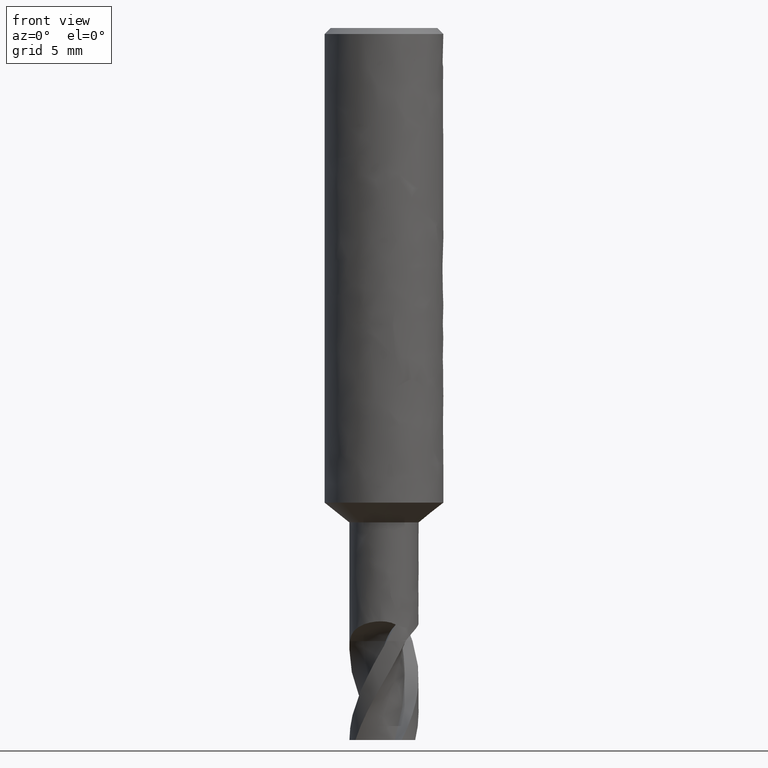
[diagram: clean part render]
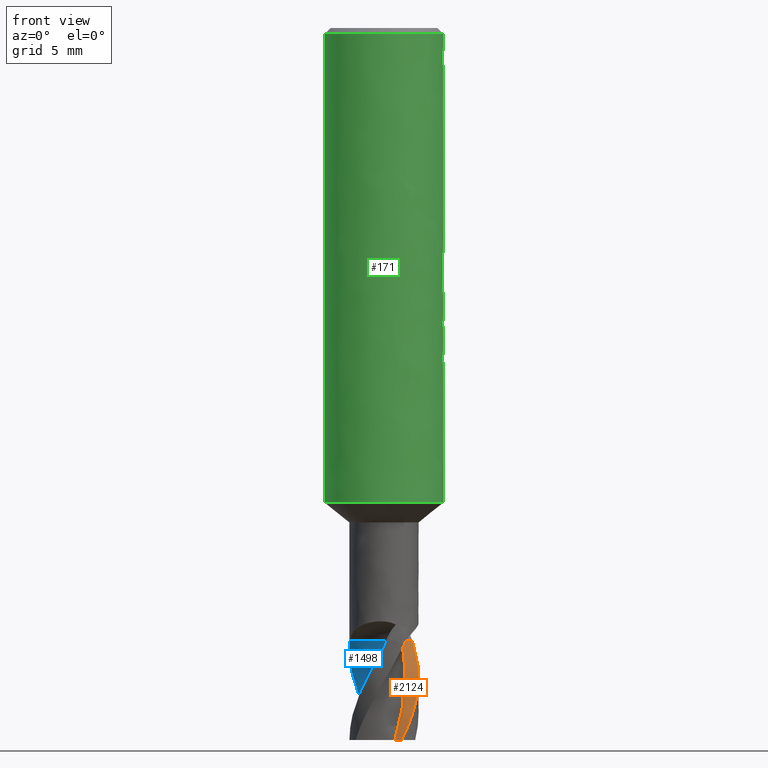
[diagram: same view with three faces highlighted in distinct colors, each labeled with its STEP entity id]
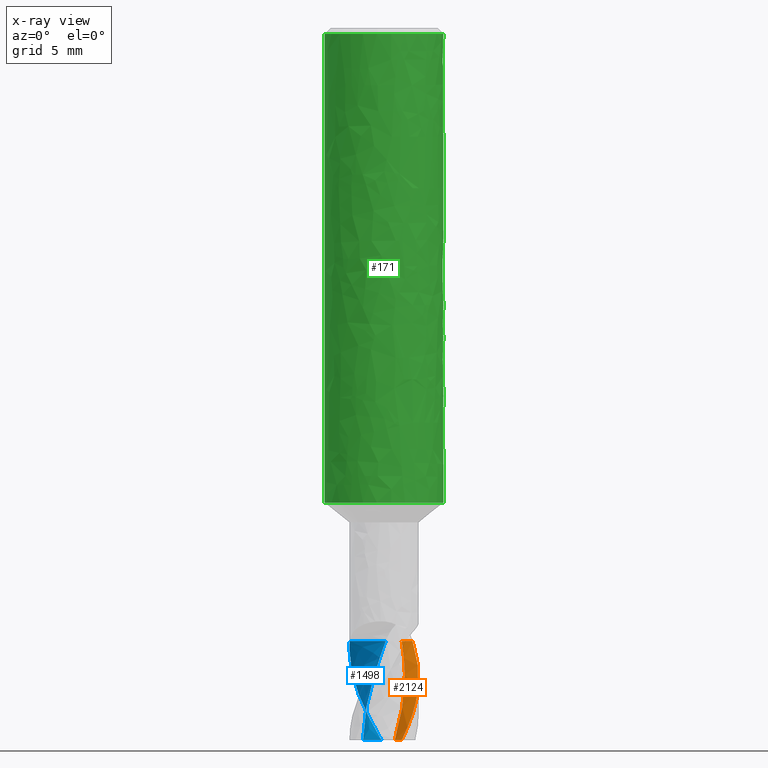
[diagram: x-ray of the same camera — body ghosted, the three highlighted faces saturated]
A machine part, front view with three faces highlighted in distinct colors.
The next image is the same camera in x-ray (body ghosted, the three faces saturated) — at least one of them is partly hidden behind the body in this view.
Their STEP definitions:

[orange] entity #2124 — the highlighted face is a freeform B-spline surface patch.
#1152 = VERTEX_POINT('', #1153);
#1153 = CARTESIAN_POINT('', (0.890026275204839, 0.612047449909204, -31.));
#1159 = EDGE_CURVE('', #1152, #1160, #1162, .T.);
#1160 = VERTEX_POINT('', #1161);
#1161 = CARTESIAN_POINT('', (1.44195658829242, 0.991595279073117, -31.));
#1162 = LINE('', #1163, #1164);
#1163 = CARTESIAN_POINT('', (0.890026275204839, 0.612047449909206, -31.));
#1164 = VECTOR('', #1165, 0.66983850675218);
#1165 = DIRECTION('', (0.551930313087578, 0.379547829163912, 0.));
#2008 = EDGE_CURVE('', #1160, #2009, #2011, .T.);
#2009 = VERTEX_POINT('', #2010);
#2010 = CARTESIAN_POINT('', (0.899635366429751, -1.50105170046498, -36.));
#2011 = B_SPLINE_CURVE_WITH_KNOTS('', 3, (#2012, #2013, #2014, #2015, #2016, #2017, #2018, #2019, #2020, #2021, #2022, #2023, #2024, #2025, #2026, #2027, #2028, #2029, #2030, #2031, #2032, #2033, #2034, #2035, #2036, #2037, #2038, #2039, #2040, #2041, #2042, #2043, #2044, #2045, #2046, #2047, #2048, #2049, #2050, #2051, #2052, #2053, #2054, #2055, #2056, #2057, #2058, #2059, #2060, #2061, #2062, #2063, #2064, #2065, #2066, #2067, #2068, #2069, #2070, #2071, #2072, #2073, #2074, #2075, #2076, #2077, #2078, #2079, #2080, #2081, #2082, #2083, #2084, #2085, #2086, #2087, #2088, #2089, #2090, #2091, #2092, #2093, #2094, #2095, #2096), .UNSPECIFIED., .F., .U., (4, 3, 3, 3, 3, 3, 3, 3, 3, 3, 3, 3, 3, 3, 3, 3, 3, 3, 3, 3, 3, 3, 3, 3, 3, 3, 3, 3, 4), (0.957480981001484, 0.963514640089023, 1.05112780125939, 1.13867924036639, 1.2262078190571, 1.31375394906046, 1.37214585069456, 1.50354472421743, 1.63486543078733, 1.72240571211267, 1.80994215847095, 1.94123628688361, 2.07254201571778, 2.16008676754211, 2.35693703943189, 2.48820820408763, 2.61948141918767, 2.9145261808132, 3.04577349566216, 3.08468653206551, 3.38086465970112, 3.67697074810741, 4.12131437525701, 4.56542010870828, 5.00929511716615, 5.45294702568853, 5.89638099274759, 6.33960030654437, 6.71621092576527), .UNSPECIFIED.);
#2012 = CARTESIAN_POINT('', (1.44195658829242, 0.991595279073117, -31.));
#2013 = CARTESIAN_POINT('', (1.44252676725661, 0.990766137051899, -31.0017413856903));
#2014 = CARTESIAN_POINT('', (1.44309631699926, 0.989936378274433, -31.0034826930488));
#2015 = CARTESIAN_POINT('', (1.44366522954594, 0.989106013023913, -31.0052239100743));
#2016 = CARTESIAN_POINT('', (1.45192625754256, 0.977048499752351, -31.0305076600634));
#2017 = CARTESIAN_POINT('', (1.4600529350013, 0.964862126108231, -31.0557745117883));
#2018 = CARTESIAN_POINT('', (1.46800663360745, 0.952605124741903, -31.0810608879493));
#2019 = CARTESIAN_POINT('', (1.4759547289608, 0.940356758235967, -31.1063294502647));
#2020 = CARTESIAN_POINT('', (1.48373046626853, 0.928037871730065, -31.1316187805019));
#2021 = CARTESIAN_POINT('', (1.49131999335129, 0.915677168783142, -31.156942821345));
#2022 = CARTESIAN_POINT('', (1.49890753874477, 0.903319693319603, -31.1822602498681));
#2023 = CARTESIAN_POINT('', (1.50630952069164, 0.890920186502531, -31.2076134528713));
#2024 = CARTESIAN_POINT('', (1.51353444577983, 0.87847224283863, -31.2329925660939));
#2025 = CARTESIAN_POINT('', (1.52076081961678, 0.866021803101397, -31.2583767683601));
#2026 = CARTESIAN_POINT('', (1.52781070299894, 0.853522488286514, -31.2837878316343));
#2027 = CARTESIAN_POINT('', (1.53471067540554, 0.840929927399591, -31.30919274148));
#2028 = CARTESIAN_POINT('', (1.5393128492541, 0.832530885927369, -31.3261374196363));
#2029 = CARTESIAN_POINT('', (1.54384992460681, 0.824087240366653, -31.3430778762613));
#2030 = CARTESIAN_POINT('', (1.54832906588599, 0.815583903551689, -31.360003495187));
#2031 = CARTESIAN_POINT('', (1.55840844508008, 0.796448906276328, -31.3980910929236));
#2032 = CARTESIAN_POINT('', (1.5681808788411, 0.777034204200262, -31.4361215385168));
#2033 = CARTESIAN_POINT('', (1.57759810919683, 0.757419438527031, -31.4741344816681));
#2034 = CARTESIAN_POINT('', (1.58700973740252, 0.737816341343983, -31.5121248115666));
#2035 = CARTESIAN_POINT('', (1.59606776806098, 0.718011852802983, -31.5501009818138));
#2036 = CARTESIAN_POINT('', (1.60474622606568, 0.698061279493407, -31.588084982679));
#2037 = CARTESIAN_POINT('', (1.61053141162434, 0.684761938926789, -31.613405666739));
#2038 = CARTESIAN_POINT('', (1.61614865189445, 0.671396552052521, -31.6387306745357));
#2039 = CARTESIAN_POINT('', (1.62159454434329, 0.657975025176552, -31.6640621321423));
#2040 = CARTESIAN_POINT('', (1.62704019821833, 0.644554086271201, -31.6893924800278));
#2041 = CARTESIAN_POINT('', (1.63231435532689, 0.631077781809103, -31.7147309969226));
#2042 = CARTESIAN_POINT('', (1.63741980698134, 0.617540586281729, -31.7400703333757));
#2043 = CARTESIAN_POINT('', (1.64507736966536, 0.597236423137572, -31.7780762866966));
#2044 = CARTESIAN_POINT('', (1.6523569273101, 0.576791255639695, -31.8160852240771));
#2045 = CARTESIAN_POINT('', (1.65925878970519, 0.556201643997983, -31.854082355324));
#2046 = CARTESIAN_POINT('', (1.6661612619106, 0.535610213172302, -31.8920828437868));
#2047 = CARTESIAN_POINT('', (1.6726862183536, 0.514872438816998, -31.9300747667278));
#2048 = CARTESIAN_POINT('', (1.67882447131224, 0.494012544904669, -31.968059960501));
#2049 = CARTESIAN_POINT('', (1.68291699520035, 0.480104741704832, -31.9933856213949));
#2050 = CARTESIAN_POINT('', (1.68683743259161, 0.466143321780081, -32.0187102871092));
#2051 = CARTESIAN_POINT('', (1.69058258055415, 0.452139954358017, -32.0440370399392));
#2052 = CARTESIAN_POINT('', (1.69900379803813, 0.420652439378967, -32.1009859498028));
#2053 = CARTESIAN_POINT('', (1.70654042701513, 0.388946616811017, -32.1579522071264));
#2054 = CARTESIAN_POINT('', (1.71318270449298, 0.35707845220082, -32.2149246484679));
#2055 = CARTESIAN_POINT('', (1.71761215989638, 0.335826913944559, -32.2529171727167));
#2056 = CARTESIAN_POINT('', (1.72164473983127, 0.314500152864474, -32.2909160345257));
#2057 = CARTESIAN_POINT('', (1.725279500076, 0.29310518012736, -32.3289123963485));
#2058 = CARTESIAN_POINT('', (1.72891431709538, 0.271709873202611, -32.3669093516713));
#2059 = CARTESIAN_POINT('', (1.73215194477331, 0.250241954208062, -32.4049055644008));
#2060 = CARTESIAN_POINT('', (1.73498955152308, 0.228716540953542, -32.4428969349884));
#2061 = CARTESIAN_POINT('', (1.74136725017571, 0.18033682832343, -32.5282849166136));
#2062 = CARTESIAN_POINT('', (1.74572372781725, 0.131650415396204, -32.6136744935367));
#2063 = CARTESIAN_POINT('', (1.74803594301206, 0.0828875258288146, -32.6990513832799));
#2064 = CARTESIAN_POINT('', (1.74906450570879, 0.0611959076325256, -32.737030324059));
#2065 = CARTESIAN_POINT('', (1.74968917675548, 0.0394865897273002, -32.7750122430195));
#2066 = CARTESIAN_POINT('', (1.74990971770295, 0.0177758231531598, -32.8129935299955));
#2067 = CARTESIAN_POINT('', (1.74997510508194, 0.0113388773686593, -32.824254462872));
#2068 = CARTESIAN_POINT('', (1.75000497382732, 0.00490169545409686, -32.83551552302));
#2069 = CARTESIAN_POINT('', (1.749999326523, -0.00153530748022943, -32.8467766116496));
#2070 = CARTESIAN_POINT('', (1.74995634329233, -0.0505291576879681, -32.9324879427027));
#2071 = CARTESIAN_POINT('', (1.74785443561536, -0.0995251405195938, -33.0182216865673));
#2072 = CARTESIAN_POINT('', (1.74370138068193, -0.148342492253743, -33.1039331197663));
#2073 = CARTESIAN_POINT('', (1.73954933589357, -0.19714797017255, -33.1896237054245));
#2074 = CARTESIAN_POINT('', (1.73334504562952, -0.245793467736491, -33.2753306211167));
#2075 = CARTESIAN_POINT('', (1.72511338267358, -0.29408131004977, -33.3610196789419));
#2076 = CARTESIAN_POINT('', (1.71276075934521, -0.36654316017988, -33.4896066558797));
#2077 = CARTESIAN_POINT('', (1.69582842980556, -0.438256674615753, -33.6182585600473));
#2078 = CARTESIAN_POINT('', (1.67446625684722, -0.508588984033774, -33.7468468234457));
#2079 = CARTESIAN_POINT('', (1.65311552081746, -0.578883638780553, -33.8753662429681));
#2080 = CARTESIAN_POINT('', (1.62731893362296, -0.647865989518041, -34.0039478907831));
#2081 = CARTESIAN_POINT('', (1.59730611060122, -0.714921806239043, -34.1324670780958));
#2082 = CARTESIAN_POINT('', (1.56730888005639, -0.781942785641575, -34.2609194961992));
#2083 = CARTESIAN_POINT('', (1.53307080477989, -0.847104215257593, -34.3894346993938));
#2084 = CARTESIAN_POINT('', (1.49489555106744, -0.909828165863633, -34.5178871235103));
#2085 = CARTESIAN_POINT('', (1.45673948495618, -0.972520590231279, -34.6462749850203));
#2086 = CARTESIAN_POINT('', (1.41461354651143, -1.03283819404429, -34.7747254444242));
#2087 = CARTESIAN_POINT('', (1.36889118576782, -1.09024626645872, -34.9031133230849));
#2088 = CARTESIAN_POINT('', (1.32319128587249, -1.14762613748582, -35.0314381319342));
#2089 = CARTESIAN_POINT('', (1.27385447299074, -1.20215460901493, -35.159825389865));
#2090 = CARTESIAN_POINT('', (1.22131784500399, -1.25334860333221, -35.2881502303339));
#2091 = CARTESIAN_POINT('', (1.16880664844429, -1.30451781615166, -35.4164129525447));
#2092 = CARTESIAN_POINT('', (1.11304787213232, -1.35240531081379, -35.5447378552291));
#2093 = CARTESIAN_POINT('', (1.05453559411031, -1.39658679671347, -35.6730006699416));
#2094 = CARTESIAN_POINT('', (1.0048167651425, -1.43412851983976, -35.7819876580268));
#2095 = CARTESIAN_POINT('', (0.953074011105411, -1.46902395973532, -35.8910135715784));
#2096 = CARTESIAN_POINT('', (0.899635366429752, -1.50105170046498, -36.));
#2124 = ADVANCED_FACE('', (#2125), #2158, .T.);
#2125 = FACE_OUTER_BOUND('', #2126, .T.);
#2126 = EDGE_LOOP('', (#2127, #2128, #2151, #2157));
#2127 = ORIENTED_EDGE('', *, *, #1159, .F.);
#2128 = ORIENTED_EDGE('', *, *, #2129, .F.);
#2129 = EDGE_CURVE('', #2130, #1152, #2132, .T.);
#2130 = VERTEX_POINT('', #2131);
#2131 = CARTESIAN_POINT('', (0.544940590071605, -0.909239487355396, -36.));
#2132 = B_SPLINE_CURVE_WITH_KNOTS('', 3, (#2133, #2134, #2135, #2136, #2137, #2138, #2139, #2140, #2141, #2142, #2143, #2144, #2145, #2146, #2147, #2148, #2149, #2150), .UNSPECIFIED., .F., .U., (4, 1, 1, 1, 1, 1, 1, 1, 1, 1, 1, 1, 1, 1, 1, 4), (0.0499999999999987, 0.672222222222222, 1.00833333333333, 1.34444444444444, 1.68055555555556, 2.01666666666667, 2.35277777777778, 2.68888888888889, 3.025, 3.36111111111111, 3.69722222222222, 4.03333333333333, 4.36944444444444, 4.70555555555555, 5.04166666666667, 5.05), .UNSPECIFIED.);
#2133 = CARTESIAN_POINT('', (0.544940590071606, -0.909239487355396, -36.));
#2134 = CARTESIAN_POINT('', (0.605563211542006, -0.870686619623749, -35.7925925925926));
#2135 = CARTESIAN_POINT('', (0.692834054224696, -0.802317325295902, -35.4731481481481));
#2136 = CARTESIAN_POINT('', (0.794933710943784, -0.694080938953839, -35.0416666666667));
#2137 = CARTESIAN_POINT('', (0.865040741189985, -0.602018946536168, -34.7055555555556));
#2138 = CARTESIAN_POINT('', (0.925006362385828, -0.503203935060161, -34.3694444444444));
#2139 = CARTESIAN_POINT('', (0.974214248807352, -0.398695321785037, -34.0333333333333));
#2140 = CARTESIAN_POINT('', (1.01215396649719, -0.28960342888543, -33.6972222222222));
#2141 = CARTESIAN_POINT('', (1.03841221324569, -0.17708625172186, -33.3611111111111));
#2142 = CARTESIAN_POINT('', (1.05272586097909, -0.0623197163890223, -33.025));
#2143 = CARTESIAN_POINT('', (1.05479878751788, 0.0534368228904306, -32.6888888888889));
#2144 = CARTESIAN_POINT('', (1.04499757171392, 0.169130957763196, -32.3527777777778));
#2145 = CARTESIAN_POINT('', (1.02176368045749, 0.282880597901976, -32.0166666666667));
#2146 = CARTESIAN_POINT('', (0.99127645414979, 0.395890538748353, -31.6805555555556));
#2147 = CARTESIAN_POINT('', (0.931391913981727, 0.49788411220861, -31.3444444444444));
#2148 = CARTESIAN_POINT('', (0.889420815383369, 0.560811912665505, -31.1175925925926));
#2149 = CARTESIAN_POINT('', (0.889999669429893, 0.610826740383209, -31.0027777777778));
#2150 = CARTESIAN_POINT('', (0.890026275204839, 0.612047449909204, -31.));
#2151 = ORIENTED_EDGE('', *, *, #2152, .T.);
#2152 = EDGE_CURVE('', #2130, #2009, #2153, .T.);
#2153 = LINE('', #2154, #2155);
#2154 = CARTESIAN_POINT('', (0.544940590071605, -0.909239487355396, -36.));
#2155 = VECTOR('', #2156, 0.68996382511072);
#2156 = DIRECTION('', (0.354694776358146, -0.591812213109581, 0.));
#2157 = ORIENTED_EDGE('', *, *, #2008, .F.);
#2158 = B_SPLINE_SURFACE_WITH_KNOTS('', 3, 1, ((#2159, #2160), (#2161, #2162), (#2163, #2164), (#2165, #2166), (#2167, #2168), (#2169, #2170), (#2171, #2172), (#2173, #2174), (#2175, #2176), (#2177, #2178), (#2179, #2180), (#2181, #2182), (#2183, #2184), (#2185, #2186), (#2187, #2188), (#2189, #2190), (#2191, #2192), (#2193, #2194)), .UNSPECIFIED., .F., .F., .U., (4, 1, 1, 1, 1, 1, 1, 1, 1, 1, 1, 1, 1, 1, 1, 4), (2, 2), (0.0499999999999994, 0.672222222222222, 1.00833333333333, 1.34444444444444, 1.68055555555556, 2.01666666666667, 2.35277777777778, 2.68888888888889, 3.025, 3.36111111111111, 3.69722222222222, 4.03333333333333, 4.36944444444444, 4.70555555555555, 5.04166666666667, 5.05), (0.201078923955313, 1.), .UNSPECIFIED.);
#2159 = CARTESIAN_POINT('', (0.9077443589053, -1.51458164537231, -36.));
#2160 = CARTESIAN_POINT('', (0.544940590071606, -0.909239487355396, -36.));
#2161 = CARTESIAN_POINT('', (1.00872755535719, -1.45036152883001, -35.7925925925926));
#2162 = CARTESIAN_POINT('', (0.605563211542006, -0.870686619623749, -35.7925925925926));
#2163 = CARTESIAN_POINT('', (1.15410049432603, -1.33647417600815, -35.4731481481482));
#2164 = CARTESIAN_POINT('', (0.692834054224696, -0.802317325295902, -35.4731481481481));
#2165 = CARTESIAN_POINT('', (1.32417479071995, -1.1561775144631, -35.0416666666667));
#2166 = CARTESIAN_POINT('', (0.794933710943784, -0.694080938953839, -35.0416666666667));
#2167 = CARTESIAN_POINT('', (1.44095680766831, -1.00282363367447, -34.7055555555556));
#2168 = CARTESIAN_POINT('', (0.865040741189985, -0.602018946536168, -34.7055555555556));
#2169 = CARTESIAN_POINT('', (1.54084559437372, -0.83822079278365, -34.3694444444444));
#2170 = CARTESIAN_POINT('', (0.925006362385828, -0.503203935060161, -34.3694444444444));
#2171 = CARTESIAN_POINT('', (1.62281449543671, -0.664133734697108, -34.0333333333333));
#2172 = CARTESIAN_POINT('', (0.974214248807352, -0.398695321785037, -34.0333333333333));
#2173 = CARTESIAN_POINT('', (1.68601324652789, -0.482411998078247, -33.6972222222222));
#2174 = CARTESIAN_POINT('', (1.01215396649719, -0.28960342888543, -33.6972222222222));
#2175 = CARTESIAN_POINT('', (1.72975338223252, -0.294984534037151, -33.3611111111111));
#2176 = CARTESIAN_POINT('', (1.03841221324569, -0.17708625172186, -33.3611111111111));
#2177 = CARTESIAN_POINT('', (1.75359659234032, -0.103810162119288, -33.025));
#2178 = CARTESIAN_POINT('', (1.05272586097909, -0.0623197163890223, -33.025));
#2179 = CARTESIAN_POINT('', (1.7570496061299, 0.0890133262604559, -32.6888888888889));
#2180 = CARTESIAN_POINT('', (1.05479878751788, 0.0534368228904306, -32.6888888888889));
#2181 = CARTESIAN_POINT('', (1.74072305876206, 0.281732863403729, -32.3527777777778));
#2182 = CARTESIAN_POINT('', (1.04499757171392, 0.169130957763196, -32.3527777777778));
#2183 = CARTESIAN_POINT('', (1.70202079633623, 0.471213324291983, -32.0166666666667));
#2184 = CARTESIAN_POINT('', (1.02176368045749, 0.282880597901976, -32.0166666666667));
#2185 = CARTESIAN_POINT('', (1.65123616365572, 0.659461618092306, -31.6805555555556));
#2186 = CARTESIAN_POINT('', (0.99127645414979, 0.395890538748353, -31.6805555555556));
#2187 = CARTESIAN_POINT('', (1.55148243909639, 0.829359204434655, -31.3444444444444));
#2188 = CARTESIAN_POINT('', (0.931391913981727, 0.49788411220861, -31.3444444444444));
#2189 = CARTESIAN_POINT('', (1.48156834445222, 0.934182293270007, -31.1175925925926));
#2190 = CARTESIAN_POINT('', (0.889420815383369, 0.560811912665505, -31.1175925925926));
#2191 = CARTESIAN_POINT('', (1.48253258074685, 1.01749537096973, -31.0027777777778));
#2192 = CARTESIAN_POINT('', (0.889999669429893, 0.610826740383209, -31.0027777777778));
#2193 = CARTESIAN_POINT('', (1.48257689978375, 1.01952878930243, -31.));
#2194 = CARTESIAN_POINT('', (0.890026275204839, 0.612047449909204, -31.));

[blue] entity #1498 — the highlighted face is a freeform B-spline surface patch.
#1133 = VERTEX_POINT('', #1134);
#1134 = CARTESIAN_POINT('', (0.0850355023404332, -1.07680908931763, -31.));
#1202 = VERTEX_POINT('', #1203);
#1203 = CARTESIAN_POINT('', (-1.72979168566461, -0.265180550202315, -31.));
#1210 = EDGE_CURVE('', #1202, #1133, #1211, .T.);
#1211 = LINE('', #1212, #1213);
#1212 = CARTESIAN_POINT('', (-1.72979168566461, -0.265180550202316, -31.));
#1213 = VECTOR('', #1214, 1.98804894502845);
#1214 = DIRECTION('', (1.81482718800504, -0.811628539115315, 0.));
#1432 = EDGE_CURVE('', #1433, #1133, #1435, .T.);
#1433 = VERTEX_POINT('', #1434);
#1434 = CARTESIAN_POINT('', (-1.05989478920952, -0.0173126508775935, -36.));
#1435 = B_SPLINE_CURVE_WITH_KNOTS('', 3, (#1436, #1437, #1438, #1439, #1440, #1441, #1442, #1443, #1444, #1445, #1446, #1447, #1448, #1449, #1450, #1451, #1452, #1453), .UNSPECIFIED., .F., .U., (4, 1, 1, 1, 1, 1, 1, 1, 1, 1, 1, 1, 1, 1, 1, 4), (0.050000000000002, 0.672222222222222, 1.00833333333333, 1.34444444444444, 1.68055555555556, 2.01666666666667, 2.35277777777778, 2.68888888888889, 3.025, 3.36111111111111, 3.69722222222222, 4.03333333333333, 4.36944444444444, 4.70555555555555, 5.04166666666667, 5.05), .UNSPECIFIED.);
#1436 = CARTESIAN_POINT('', (-1.05989478920952, -0.0173126508775925, -36.));
#1437 = CARTESIAN_POINT('', (-1.05681833710037, -0.0890898149807902, -35.7925925925926));
#1438 = CARTESIAN_POINT('', (-1.04124421271498, -0.198853228917598, -35.4731481481481));
#1439 = CARTESIAN_POINT('', (-0.998558580888475, -0.34139231852503, -35.0416666666667));
#1440 = CARTESIAN_POINT('', (-0.953884071854862, -0.44813778391096, -34.7055555555556));
#1441 = CARTESIAN_POINT('', (-0.89829057223931, -0.549477040958278, -34.3694444444444));
#1442 = CARTESIAN_POINT('', (-0.832387401439531, -0.644346627303419, -34.0333333333333));
#1443 = CARTESIAN_POINT('', (-0.75688090968646, -0.731749333085034, -33.6972222222222));
#1444 = CARTESIAN_POINT('', (-0.672567299274945, -0.810748230409862, -33.3611111111111));
#1445 = CARTESIAN_POINT('', (-0.58033338803908, -0.880527480634221, -33.025));
#1446 = CARTESIAN_POINT('', (-0.481121747638301, -0.940200957316724, -32.6888888888889));
#1447 = CARTESIAN_POINT('', (-0.376027079867641, -0.989559922878901, -32.3527777777778));
#1448 = CARTESIAN_POINT('', (-0.265900056207906, -1.02631360289146, -32.0166666666667));
#1449 = CARTESIAN_POINT('', (-0.152786963400915, -1.05641586084125, -31.6805555555556));
#1450 = CARTESIAN_POINT('', (-0.0345156676775466, -1.05555111449189, -31.3444444444444));
#1451 = CARTESIAN_POINT('', (0.0409669554215811, -1.05066697710942, -31.1175925925926));
#1452 = CARTESIAN_POINT('', (0.0839916397677529, -1.07617569327764, -31.0027777777778));
#1453 = CARTESIAN_POINT('', (0.0850355023404332, -1.07680908931763, -31.));
#1498 = ADVANCED_FACE('', (#1499), #1602, .T.);
#1499 = FACE_OUTER_BOUND('', #1500, .T.);
#1500 = EDGE_LOOP('', (#1501, #1502, #1532, #1595, #1601));
#1501 = ORIENTED_EDGE('', *, *, #1210, .F.);
#1502 = ORIENTED_EDGE('', *, *, #1503, .F.);
#1503 = EDGE_CURVE('', #1504, #1202, #1506, .T.);
#1504 = VERTEX_POINT('', #1505);
#1505 = CARTESIAN_POINT('', (-1.75, 2.03132023899144E-15, -31.4239770259593));
#1506 = B_SPLINE_CURVE_WITH_KNOTS('', 3, (#1507, #1508, #1509, #1510, #1511, #1512, #1513, #1514, #1515, #1516, #1517, #1518, #1519, #1520, #1521, #1522, #1523, #1524, #1525, #1526, #1527, #1528, #1529, #1530, #1531), .UNSPECIFIED., .F., .U., (4, 3, 3, 3, 3, 3, 3, 3, 4), (0., 0.0875957689449736, 0.175201051879796, 0.262888556395676, 0.321340477699556, 0.379802090585649, 0.438269246781492, 0.496739733441805, 0.501656907740969), .UNSPECIFIED.);
#1507 = CARTESIAN_POINT('', (-1.75, 1.88386874353342E-15, -31.4239770259593));
#1508 = CARTESIAN_POINT('', (-1.75, -0.0139529094640566, -31.3983279722742));
#1509 = CARTESIAN_POINT('', (-1.74983320774687, -0.0278845103399643, -31.3726667875061));
#1510 = CARTESIAN_POINT('', (-1.749500674923, -0.0418017756078211, -31.3470005297571));
#1511 = CARTESIAN_POINT('', (-1.74916810598193, -0.0557205524637611, -31.3213314843334));
#1512 = CARTESIAN_POINT('', (-1.74867249802065, -0.0696190440979103, -31.2956513483995));
#1513 = CARTESIAN_POINT('', (-1.74799116538224, -0.0838265217316721, -31.2701478935482));
#1514 = CARTESIAN_POINT('', (-1.74730919328187, -0.0980473337356313, -31.2446205025333));
#1515 = CARTESIAN_POINT('', (-1.74644028711271, -0.112584208946517, -31.2192653693865));
#1516 = CARTESIAN_POINT('', (-1.74533655312676, -0.127672692146903, -31.1942560967457));
#1517 = CARTESIAN_POINT('', (-1.74460081121641, -0.137730577104323, -31.1775850779461));
#1518 = CARTESIAN_POINT('', (-1.74376000982394, -0.148034013280921, -31.1610628552125));
#1519 = CARTESIAN_POINT('', (-1.74279630475299, -0.158622319171926, -31.1447354462115));
#1520 = CARTESIAN_POINT('', (-1.74183243989555, -0.169212380649998, -31.1284053300553));
#1521 = CARTESIAN_POINT('', (-1.74074519088669, -0.180090932253949, -31.1122645478128));
#1522 = CARTESIAN_POINT('', (-1.73951557030934, -0.191273575414373, -31.0963526762563));
#1523 = CARTESIAN_POINT('', (-1.73828583313979, -0.202457278909122, -31.0804392959416));
#1524 = CARTESIAN_POINT('', (-1.73691308778944, -0.213949617090657, -31.0647481301958));
#1525 = CARTESIAN_POINT('', (-1.73537853874999, -0.225746156660182, -31.0493108388585));
#1526 = CARTESIAN_POINT('', (-1.73384390229804, -0.237543368195961, -31.0338726681668));
#1527 = CARTESIAN_POINT('', (-1.7321466014968, -0.249650450885244, -31.0186813616126));
#1528 = CARTESIAN_POINT('', (-1.73026917606986, -0.262046901038714, -31.0037592397553));
#1529 = CARTESIAN_POINT('', (-1.73011129080868, -0.263089401444938, -31.0025043387227));
#1530 = CARTESIAN_POINT('', (-1.7299521226471, -0.264134008296475, -31.0012512080036));
#1531 = CARTESIAN_POINT('', (-1.72979168566461, -0.265180550202315, -31.));
#1532 = ORIENTED_EDGE('', *, *, #1533, .F.);
#1533 = EDGE_CURVE('', #1534, #1504, #1536, .T.);
#1534 = VERTEX_POINT('', #1535);
#1535 = CARTESIAN_POINT('', (-0.13579938749371, 1.74472305147732, -36.));
#1536 = B_SPLINE_CURVE_WITH_KNOTS('', 3, (#1537, #1538, #1539, #1540, #1541, #1542, #1543, #1544, #1545, #1546, #1547, #1548, #1549, #1550, #1551, #1552, #1553, #1554, #1555, #1556, #1557, #1558, #1559, #1560, #1561, #1562, #1563, #1564, #1565, #1566, #1567, #1568, #1569, #1570, #1571, #1572, #1573, #1574, #1575, #1576, #1577, #1578, #1579, #1580, #1581, #1582, #1583, #1584, #1585, #1586, #1587, #1588, #1589, #1590, #1591, #1592, #1593, #1594), .UNSPECIFIED., .F., .U., (4, 3, 3, 3, 3, 3, 3, 3, 3, 3, 3, 3, 3, 3, 3, 3, 3, 3, 3, 4), (0., 0.444485917132373, 0.888742850339028, 1.33277559174829, 1.77658916909205, 2.22018659387222, 2.66356901522196, 3.10673755910325, 3.4021459382814, 3.84495677835667, 4.14018737503664, 4.27147412596438, 4.46835553625788, 4.59964403143588, 4.7309075642457, 4.86214859993675, 4.94967602204588, 5.00804364735204, 5.13931018926137, 5.26894643645169), .UNSPECIFIED.);
#1537 = CARTESIAN_POINT('', (-0.135799387493712, 1.74472305147732, -36.));
#1538 = CARTESIAN_POINT('', (-0.208182108121247, 1.73908918934773, -35.870845164973));
#1539 = CARTESIAN_POINT('', (-0.280325774037532, 1.72893425050256, -35.7416739572751));
#1540 = CARTESIAN_POINT('', (-0.351616540846928, 1.71431205099971, -35.6126166525295));
#1541 = CARTESIAN_POINT('', (-0.422870581094194, 1.69969738435341, -35.4836258336884));
#1542 = CARTESIAN_POINT('', (-0.493334391653768, 1.68060634149178, -35.354625351265));
#1543 = CARTESIAN_POINT('', (-0.562381102560269, 1.65717455190565, -35.2257344631937));
#1544 = CARTESIAN_POINT('', (-0.631392969427059, 1.63375458704218, -35.0969086191942));
#1545 = CARTESIAN_POINT('', (-0.699055259304116, 1.60597587599406, -34.9680711737583));
#1546 = CARTESIAN_POINT('', (-0.764763525052212, 1.57405106357765, -34.8393448719805));
#1547 = CARTESIAN_POINT('', (-0.830439358753491, 1.54214200849403, -34.7106821064626));
#1548 = CARTESIAN_POINT('', (-0.8942241778632, 1.50606112831375, -34.5820069558558));
#1549 = CARTESIAN_POINT('', (-0.95554183034097, 1.46609679437228, -34.4534433231029));
#1550 = CARTESIAN_POINT('', (-1.01682961900102, 1.42615192444379, -34.3249423052861));
#1551 = CARTESIAN_POINT('', (-1.07570973295833, 1.38229005204606, -34.1964280981125));
#1552 = CARTESIAN_POINT('', (-1.13164428073795, 1.33487123793761, -34.0680260744305));
#1553 = CARTESIAN_POINT('', (-1.18755171808145, 1.28747540684739, -33.9396862848238));
#1554 = CARTESIAN_POINT('', (-1.24056950166134, 1.23648065638393, -33.8113335976206));
#1555 = CARTESIAN_POINT('', (-1.29020318995757, 1.1823179473489, -33.683091615854));
#1556 = CARTESIAN_POINT('', (-1.33981293610568, 1.12818136515728, -33.5549114950658));
#1557 = CARTESIAN_POINT('', (-1.38609171719219, 1.07082578677026, -33.4267177773291));
#1558 = CARTESIAN_POINT('', (-1.42860492804149, 1.01073634523331, -33.2986399661025));
#1559 = CARTESIAN_POINT('', (-1.45694348880815, 0.970681777337561, -33.2132655433337));
#1560 = CARTESIAN_POINT('', (-1.48362432496311, 0.929393761390241, -33.1278945096896));
#1561 = CARTESIAN_POINT('', (-1.50852813059148, 0.887041644577182, -33.0425579221939));
#1562 = CARTESIAN_POINT('', (-1.54585840240723, 0.823556727605189, -32.9146402033286));
#1563 = CARTESIAN_POINT('', (-1.57922772355106, 0.757627127784379, -32.7866943574195));
#1564 = CARTESIAN_POINT('', (-1.6083479937175, 0.689722212999941, -32.6589142373303));
#1565 = CARTESIAN_POINT('', (-1.62776304402489, 0.6444486860332, -32.5737207468291));
#1566 = CARTESIAN_POINT('', (-1.64528744808434, 0.598292637279147, -32.4885400582087));
#1567 = CARTESIAN_POINT('', (-1.66080768069556, 0.551559468908565, -32.4033361815365));
#1568 = CARTESIAN_POINT('', (-1.66770940746807, 0.530777592284227, -32.36544668004));
#1569 = CARTESIAN_POINT('', (-1.67421487365111, 0.509885483204432, -32.3275432413459));
#1570 = CARTESIAN_POINT('', (-1.6803267069812, 0.488878469361981, -32.2896422464394));
#1571 = CARTESIAN_POINT('', (-1.68949218908052, 0.457375743594677, -32.2328048178644));
#1572 = CARTESIAN_POINT('', (-1.69777993894808, 0.425594286920368, -32.1759725175508));
#1573 = CARTESIAN_POINT('', (-1.70519350202135, 0.393465526652838, -32.1192300913942));
#1574 = CARTESIAN_POINT('', (-1.7101371660186, 0.372040768565364, -32.0813919444013));
#1575 = CARTESIAN_POINT('', (-1.71469216239242, 0.350458284122381, -32.0435898582454));
#1576 = CARTESIAN_POINT('', (-1.71885100610759, 0.328711452193159, -32.0058411528282));
#1577 = CARTESIAN_POINT('', (-1.72300905908638, 0.306968755069694, -31.9680996247123));
#1578 = CARTESIAN_POINT('', (-1.72676638636305, 0.285075718659257, -31.9303982533948));
#1579 = CARTESIAN_POINT('', (-1.73009651686208, 0.263184426480179, -31.8926604900152));
#1580 = CARTESIAN_POINT('', (-1.73342607661354, 0.241296886226631, -31.8549291944712));
#1581 = CARTESIAN_POINT('', (-1.73632924161598, 0.219408903979693, -31.8171578103492));
#1582 = CARTESIAN_POINT('', (-1.73880243124873, 0.197651473770168, -31.779285675294));
#1583 = CARTESIAN_POINT('', (-1.74045185371634, 0.183140983450342, -31.7540279475285));
#1584 = CARTESIAN_POINT('', (-1.74191059463836, 0.16868729412633, -31.7287242187666));
#1585 = CARTESIAN_POINT('', (-1.74318218265357, 0.154323938775353, -31.7033607642966));
#1586 = CARTESIAN_POINT('', (-1.74403014059666, 0.144745741188087, -31.6864471551521));
#1587 = CARTESIAN_POINT('', (-1.74479481712819, 0.135209737175101, -31.6695052147357));
#1588 = CARTESIAN_POINT('', (-1.74547869090737, 0.125714516219514, -31.652537475592));
#1589 = CARTESIAN_POINT('', (-1.74701669670467, 0.104360129897186, -31.6143776835889));
#1590 = CARTESIAN_POINT('', (-1.74814817049194, 0.0831981967207093, -31.5760917435938));
#1591 = CARTESIAN_POINT('', (-1.74889636568206, 0.0621409857026753, -31.5377436136412));
#1592 = CARTESIAN_POINT('', (-1.74963526849157, 0.0413452995135909, -31.4998717570241));
#1593 = CARTESIAN_POINT('', (-1.75, 0.0206494313834184, -31.4619360176294));
#1594 = CARTESIAN_POINT('', (-1.75, 1.88386874353342E-15, -31.4239770259593));
#1595 = ORIENTED_EDGE('', *, *, #1596, .F.);
#1596 = EDGE_CURVE('', #1433, #1534, #1597, .T.);
#1597 = LINE('', #1598, #1599);
#1598 = CARTESIAN_POINT('', (-1.05989478920952, -0.0173126508775935, -36.));
#1599 = VECTOR('', #1600, 1.989653770847);
#1600 = DIRECTION('', (0.924095401715807, 1.76203570235492, 0.));
#1601 = ORIENTED_EDGE('', *, *, #1432, .T.);
#1602 = B_SPLINE_SURFACE_WITH_KNOTS('', 3, 1, ((#1603, #1604), (#1605, #1606), (#1607, #1608), (#1609, #1610), (#1611, #1612), (#1613, #1614), (#1615, #1616), (#1617, #1618), (#1619, #1620), (#1621, #1622), (#1623, #1624), (#1625, #1626), (#1627, #1628), (#1629, #1630), (#1631, #1632), (#1633, #1634), (#1635, #1636), (#1637, #1638)), .UNSPECIFIED., .F., .F., .U., (4, 1, 1, 1, 1, 1, 1, 1, 1, 1, 1, 1, 1, 1, 1, 4), (2, 2), (0.0500000000000043, 0.672222222222222, 1.00833333333333, 1.34444444444444, 1.68055555555556, 2.01666666666667, 2.35277777777778, 2.68888888888889, 3.025, 3.36111111111111, 3.69722222222222, 4.03333333333333, 4.36944444444444, 4.70555555555555, 5.04166666666667, 5.05), (0., 0.907194261383018), .UNSPECIFIED.);
#1603 = CARTESIAN_POINT('', (-1.05989478920952, -0.0173126508775933, -36.));
#1604 = CARTESIAN_POINT('', (-0.127158537565598, 1.76119914912239, -36.));
#1605 = CARTESIAN_POINT('', (-1.05681833710037, -0.0890898149807907, -35.7925925925926));
#1606 = CARTESIAN_POINT('', (-0.246252049338696, 1.74942109361076, -35.7925925925926));
#1607 = CARTESIAN_POINT('', (-1.04124421271498, -0.198853228917599, -35.4731481481481));
#1608 = CARTESIAN_POINT('', (-0.427364036482812, 1.71333169908167, -35.4731481481481));
#1609 = CARTESIAN_POINT('', (-0.998558580888475, -0.34139231852503, -35.0416666666667));
#1610 = CARTESIAN_POINT('', (-0.660472079102961, 1.62910895982191, -35.0416666666667));
#1611 = CARTESIAN_POINT('', (-0.953884071854862, -0.44813778391096, -34.7055555555556));
#1612 = CARTESIAN_POINT('', (-0.833863963277165, 1.54490019464953, -34.7055555555556));
#1613 = CARTESIAN_POINT('', (-0.89829057223931, -0.549477040958278, -34.3694444444444));
#1614 = CARTESIAN_POINT('', (-0.997250953634309, 1.44303280637574, -34.3694444444444));
#1615 = CARTESIAN_POINT('', (-0.832387401439531, -0.644346627303419, -34.0333333333333));
#1616 = CARTESIAN_POINT('', (-1.14892085909654, 1.32461890402243, -34.0333333333333));
#1617 = CARTESIAN_POINT('', (-0.75688090968646, -0.731749333085034, -33.6972222222222));
#1618 = CARTESIAN_POINT('', (-1.2872806840688, 1.19092582866007, -33.6972222222222));
#1619 = CARTESIAN_POINT('', (-0.672567299274945, -0.810748230409862, -33.3611111111111));
#1620 = CARTESIAN_POINT('', (-1.41084603207833, 1.04336476785393, -33.3611111111111));
#1621 = CARTESIAN_POINT('', (-0.58033338803908, -0.880527480634221, -33.025));
#1622 = CARTESIAN_POINT('', (-1.51834231066032, 0.883486382203558, -33.025));
#1623 = CARTESIAN_POINT('', (-0.481121747638301, -0.940200957316724, -32.6888888888889));
#1624 = CARTESIAN_POINT('', (-1.60838319969928, 0.712940584595227, -32.6888888888889));
#1625 = CARTESIAN_POINT('', (-0.376027079867641, -0.989559922878901, -32.3527777777778));
#1626 = CARTESIAN_POINT('', (-1.68072312365944, 0.533567443582447, -32.3527777777778));
#1627 = CARTESIAN_POINT('', (-0.265900056207906, -1.02631360289146, -32.0166666666667));
#1628 = CARTESIAN_POINT('', (-1.73163103780586, 0.346994384035267, -32.0166666666667));
#1629 = CARTESIAN_POINT('', (-0.152786963400915, -1.05641586084125, -31.6805555555556));
#1630 = CARTESIAN_POINT('', (-1.77119925240298, 0.156072215835587, -31.6805555555556));
#1631 = CARTESIAN_POINT('', (-0.0345156676775466, -1.05555111449189, -31.3444444444444));
#1632 = CARTESIAN_POINT('', (-1.75878476041574, -0.0405551054794617, -31.3444444444444));
#1633 = CARTESIAN_POINT('', (0.0409669554215813, -1.05066697710942, -31.1175925925926));
#1634 = CARTESIAN_POINT('', (-1.74365629391677, -0.165643734103229, -31.1175925925926));
#1635 = CARTESIAN_POINT('', (0.0839916397677534, -1.07617569327764, -31.0027777777778));
#1636 = CARTESIAN_POINT('', (-1.78208918466621, -0.239569291698941, -31.0027777777778));
#1637 = CARTESIAN_POINT('', (0.0850355023404338, -1.07680908931763, -31.));
#1638 = CARTESIAN_POINT('', (-1.78304576585902, -0.241364215734884, -31.));

[green] entity #171 — the highlighted face is a freeform B-spline surface patch.
#73 = VERTEX_POINT('', #74);
#74 = CARTESIAN_POINT('', (-3., 1.65327317884893E-15, -24.));
#82 = EDGE_CURVE('', #73, #73, #83, .T.);
#83 = CIRCLE('', #84, 3.);
#84 = AXIS2_PLACEMENT_3D('', #85, #86, #87);
#85 = CARTESIAN_POINT('', (8.99855869597115E-32, 1.46957615897682E-15, -24.));
#86 = DIRECTION('', (3.74939945665464E-33, 6.12323399573677E-17, -1.));
#87 = DIRECTION('', (-1., 6.12323399573677E-17, 0.));
#120 = VERTEX_POINT('', #121);
#121 = CARTESIAN_POINT('', (-3., 2.02066721859313E-16, -0.300000000000001));
#137 = EDGE_CURVE('', #120, #120, #138, .T.);
#138 = CIRCLE('', #139, 3.);
#139 = AXIS2_PLACEMENT_3D('', #140, #141, #142);
#140 = CARTESIAN_POINT('', (1.1248198369964E-33, 1.83697019872102E-17, -0.300000000000001));
#141 = DIRECTION('', (3.74939945665464E-33, 6.12323399573677E-17, -1.));
#142 = DIRECTION('', (-1., 6.12323399573677E-17, 0.));
#171 = ADVANCED_FACE('', (#172, #183), #354, .T.);
#172 = FACE_OUTER_BOUND('', #173, .T.);
#173 = EDGE_LOOP('', (#174, #180, #181, #182));
#174 = ORIENTED_EDGE('', *, *, #175, .T.);
#175 = EDGE_CURVE('', #73, #120, #176, .T.);
#176 = LINE('', #177, #178);
#177 = CARTESIAN_POINT('', (-3., 1.65327317884893E-15, -24.));
#178 = VECTOR('', #179, 23.7);
#179 = DIRECTION('', (0., -1.45120645698961E-15, 23.7));
#180 = ORIENTED_EDGE('', *, *, #137, .T.);
#181 = ORIENTED_EDGE('', *, *, #175, .F.);
#182 = ORIENTED_EDGE('', *, *, #82, .F.);
#183 = FACE_BOUND('', #184, .T.);
#184 = EDGE_LOOP('', (#185, #265, #273, #348));
#185 = ORIENTED_EDGE('', *, *, #186, .F.);
#186 = EDGE_CURVE('', #187, #189, #191, .T.);
#187 = VERTEX_POINT('', #188);
#188 = CARTESIAN_POINT('', (-2.14242852856286, 2.1, -15.9));
#189 = VERTEX_POINT('', #190);
#190 = CARTESIAN_POINT('', (2.14242852856286, 2.1, -15.9));
#191 = B_SPLINE_CURVE_WITH_KNOTS('', 3, (#192, #193, #194, #195, #196, #197, #198, #199, #200, #201, #202, #203, #204, #205, #206, #207, #208, #209, #210, #211, #212, #213, #214, #215, #216, #217, #218, #219, #220, #221, #222, #223, #224, #225, #226, #227, #228, #229, #230, #231, #232, #233, #234, #235, #236, #237, #238, #239, #240, #241, #242, #243, #244, #245, #246, #247, #248, #249, #250, #251, #252, #253, #254, #255, #256, #257, #258, #259, #260, #261, #262, #263, #264), .UNSPECIFIED., .F., .U., (4, 3, 3, 3, 3, 3, 3, 3, 3, 3, 3, 3, 3, 3, 3, 3, 3, 3, 3, 3, 3, 3, 3, 3, 4), (0., 0.226532141220097, 0.522486989651004, 0.818712617000354, 1.01613164123476, 1.21365653787484, 1.41130126070875, 1.60907935009335, 1.8070024900134, 2.00507870652316, 2.20331049885991, 2.40169339368013, 2.59896230886552, 2.79623122405091, 2.99461411887113, 3.19284591120787, 3.39092212771764, 3.58884526763769, 3.78662335702228, 3.9842680798562, 4.18179297649627, 4.37921200073068, 4.67543762808003, 4.97139247651094, 5.19792461773105), .UNSPECIFIED.);
#192 = CARTESIAN_POINT('', (-2.14242852856286, 2.1, -15.9));
#193 = CARTESIAN_POINT('', (-2.09966946167759, 2.14362297369034, -15.8556089394693));
#194 = CARTESIAN_POINT('', (-2.05511554936736, 2.1864112283916, -15.8120672951529));
#195 = CARTESIAN_POINT('', (-2.0087677833036, 2.22819478339795, -15.7695480406738));
#196 = CARTESIAN_POINT('', (-1.94821634893923, 2.28278326528932, -15.71399839793));
#197 = CARTESIAN_POINT('', (-1.88451279376245, 2.33573606973674, -15.6601132326456));
#198 = CARTESIAN_POINT('', (-1.81770907332824, 2.38661553768947, -15.6083379099064));
#199 = CARTESIAN_POINT('', (-1.75084423195189, 2.43754155695695, -15.5565152162052));
#200 = CARTESIAN_POINT('', (-1.68074368663281, 2.48648668451198, -15.5067082925553));
#201 = CARTESIAN_POINT('', (-1.60754910566601, 2.5329401636976, -15.4594368887068));
#202 = CARTESIAN_POINT('', (-1.55876871187291, 2.56389899941746, -15.4279329486004));
#203 = CARTESIAN_POINT('', (-1.50855619382241, 2.59378846644903, -15.3975172059771));
#204 = CARTESIAN_POINT('', (-1.45698599487322, 2.6224400490275, -15.3683611437249));
#205 = CARTESIAN_POINT('', (-1.40538813971895, 2.65110699695378, -15.3391894455812));
#206 = CARTESIAN_POINT('', (-1.35237136818211, 2.67856731294511, -15.311245625015));
#207 = CARTESIAN_POINT('', (-1.2980449081672, 2.70464034880449, -15.2847135109673));
#208 = CARTESIAN_POINT('', (-1.24368549163369, 2.7307292015695, -15.2581653015195));
#209 = CARTESIAN_POINT('', (-1.18794354651529, 2.75546251726231, -15.2329964966177));
#210 = CARTESIAN_POINT('', (-1.13097137564118, 2.77865142604832, -15.2093992916021));
#211 = CARTESIAN_POINT('', (-1.07396076113039, 2.80185598222797, -15.1857861636831));
#212 = CARTESIAN_POINT('', (-1.01563414958426, 2.82354738172838, -15.1637128351876));
#213 = CARTESIAN_POINT('', (-0.956194799697475, 2.84353503671602, -15.143373249704));
#214 = CARTESIAN_POINT('', (-0.896711856966026, 2.86353735065839, -15.1230187471597));
#215 = CARTESIAN_POINT('', (-0.836016614422429, 2.88186535336629, -15.1043680361057));
#216 = CARTESIAN_POINT('', (-0.774369168024398, 2.89833614192924, -15.087607239896));
#217 = CARTESIAN_POINT('', (-0.712674042608829, 2.91481966923584, -15.0708334806465));
#218 = CARTESIAN_POINT('', (-0.649913305064568, 2.92947198918525, -15.0559231715418));
#219 = CARTESIAN_POINT('', (-0.586405693294032, 2.94212990244693, -15.0430423854271));
#220 = CARTESIAN_POINT('', (-0.522848200475711, 2.95479775766609, -15.030151482303));
#221 = CARTESIAN_POINT('', (-0.458417641638564, 2.96549204170255, -15.0192688998049));
#222 = CARTESIAN_POINT('', (-0.393487032405319, 2.97408270821927, -15.010526974047));
#223 = CARTESIAN_POINT('', (-0.328506929716997, 2.98267992298453, -15.0017783847429));
#224 = CARTESIAN_POINT('', (-0.262890170542849, 2.98918754384691, -14.9951561816426));
#225 = CARTESIAN_POINT('', (-0.197052250671397, 2.99352140638837, -14.9907460110803));
#226 = CARTESIAN_POINT('', (-0.131584030526338, 2.99783093298788, -14.9863606049525));
#227 = CARTESIAN_POINT('', (-0.0657563050618008, 3., -14.9841533463251));
#228 = CARTESIAN_POINT('', (-3.46086516886445E-15, 3., -14.9841533463251));
#229 = CARTESIAN_POINT('', (0.0657563050617912, 3., -14.9841533463251));
#230 = CARTESIAN_POINT('', (0.131584030526326, 2.99783093298788, -14.9863606049525));
#231 = CARTESIAN_POINT('', (0.197052250671382, 2.99352140638837, -14.9907460110803));
#232 = CARTESIAN_POINT('', (0.262890170542834, 2.98918754384691, -14.9951561816426));
#233 = CARTESIAN_POINT('', (0.328506929716983, 2.98267992298454, -15.0017783847429));
#234 = CARTESIAN_POINT('', (0.393487032405304, 2.97408270821927, -15.010526974047));
#235 = CARTESIAN_POINT('', (0.45841764163855, 2.96549204170255, -15.0192688998049));
#236 = CARTESIAN_POINT('', (0.522848200475697, 2.95479775766609, -15.030151482303));
#237 = CARTESIAN_POINT('', (0.586405693294018, 2.94212990244693, -15.0430423854271));
#238 = CARTESIAN_POINT('', (0.649913305064554, 2.92947198918526, -15.0559231715418));
#239 = CARTESIAN_POINT('', (0.712674042608815, 2.91481966923585, -15.0708334806465));
#240 = CARTESIAN_POINT('', (0.774369168024384, 2.89833614192924, -15.087607239896));
#241 = CARTESIAN_POINT('', (0.836016614422416, 2.88186535336629, -15.1043680361057));
#242 = CARTESIAN_POINT('', (0.896711856966014, 2.86353735065839, -15.1230187471597));
#243 = CARTESIAN_POINT('', (0.956194799697463, 2.84353503671602, -15.143373249704));
#244 = CARTESIAN_POINT('', (1.01563414958425, 2.82354738172838, -15.1637128351876));
#245 = CARTESIAN_POINT('', (1.07396076113038, 2.80185598222798, -15.1857861636831));
#246 = CARTESIAN_POINT('', (1.13097137564117, 2.77865142604833, -15.2093992916021));
#247 = CARTESIAN_POINT('', (1.18794354651528, 2.75546251726231, -15.2329964966177));
#248 = CARTESIAN_POINT('', (1.24368549163367, 2.73072920156951, -15.2581653015195));
#249 = CARTESIAN_POINT('', (1.29804490816718, 2.7046403488045, -15.2847135109673));
#250 = CARTESIAN_POINT('', (1.3523713681821, 2.67856731294512, -15.311245625015));
#251 = CARTESIAN_POINT('', (1.40538813971894, 2.65110699695379, -15.3391894455811));
#252 = CARTESIAN_POINT('', (1.45698599487321, 2.6224400490275, -15.3683611437249));
#253 = CARTESIAN_POINT('', (1.5085561938224, 2.59378846644904, -15.3975172059771));
#254 = CARTESIAN_POINT('', (1.5587687118729, 2.56389899941747, -15.4279329486004));
#255 = CARTESIAN_POINT('', (1.607549105666, 2.53294016369761, -15.4594368887067));
#256 = CARTESIAN_POINT('', (1.6807436866328, 2.48648668451199, -15.5067082925553));
#257 = CARTESIAN_POINT('', (1.75084423195188, 2.43754155695696, -15.5565152162052));
#258 = CARTESIAN_POINT('', (1.81770907332823, 2.38661553768948, -15.6083379099064));
#259 = CARTESIAN_POINT('', (1.88451279376244, 2.33573606973675, -15.6601132326456));
#260 = CARTESIAN_POINT('', (1.94821634893922, 2.28278326528933, -15.71399839793));
#261 = CARTESIAN_POINT('', (2.00876778330359, 2.22819478339795, -15.7695480406737));
#262 = CARTESIAN_POINT('', (2.05511554936735, 2.1864112283916, -15.8120672951529));
#263 = CARTESIAN_POINT('', (2.09966946167759, 2.14362297369035, -15.8556089394693));
#264 = CARTESIAN_POINT('', (2.14242852856286, 2.1, -15.9));
#265 = ORIENTED_EDGE('', *, *, #266, .T.);
#266 = EDGE_CURVE('', #187, #267, #269, .T.);
#267 = VERTEX_POINT('', #268);
#268 = CARTESIAN_POINT('', (-2.14242852856286, 2.1, -20.1));
#269 = LINE('', #270, #271);
#270 = CARTESIAN_POINT('', (-2.14242852856286, 2.1, -15.9));
#271 = VECTOR('', #272, 4.2);
#272 = DIRECTION('', (4.44089209850063E-16, 4.44089209850063E-16, -4.2));
#273 = ORIENTED_EDGE('', *, *, #274, .T.);
#274 = EDGE_CURVE('', #267, #275, #277, .T.);
#275 = VERTEX_POINT('', #276);
#276 = CARTESIAN_POINT('', (2.14242852856286, 2.1, -20.1));
#277 = B_SPLINE_CURVE_WITH_KNOTS('', 3, (#278, #279, #280, #281, #282, #283, #284, #285, #286, #287, #288, #289, #290, #291, #292, #293, #294, #295, #296, #297, #298, #299, #300, #301, #302, #303, #304, #305, #306, #307, #308, #309, #310, #311, #312, #313, #314, #315, #316, #317, #318, #319, #320, #321, #322, #323, #324, #325, #326, #327, #328, #329, #330, #331, #332, #333, #334, #335, #336, #337, #338, #339, #340, #341, #342, #343, #344, #345, #346, #347), .UNSPECIFIED., .F., .U., (4, 3, 3, 3, 3, 3, 3, 3, 3, 3, 3, 3, 3, 3, 3, 3, 3, 3, 3, 3, 3, 3, 3, 4), (0., 0.295660747419768, 0.591176839852676, 0.886518626925896, 1.18164841836716, 1.47652016794507, 1.67307726230278, 1.86952243409268, 2.06584587187348, 2.26204020012184, 2.39294997035299, 2.59879551853109, 2.79606443371648, 2.9944473285367, 3.19267912087344, 3.39075533738321, 3.58867847730326, 3.78645656668785, 3.98410128952177, 4.18162618616184, 4.37904521039625, 4.6752708377456, 4.97122568617651, 5.19775782739662), .UNSPECIFIED.);
#278 = CARTESIAN_POINT('', (-2.14242852856286, 2.1, -20.1));
#279 = CARTESIAN_POINT('', (-2.08662109388194, 2.15693497150777, -20.157937447925));
#280 = CARTESIAN_POINT('', (-2.02774367313634, 2.21245994000831, -20.2144400663657));
#281 = CARTESIAN_POINT('', (-1.96580397010841, 2.26618947820047, -20.269115641651));
#282 = CARTESIAN_POINT('', (-1.90389457170158, 2.31989272867704, -20.3237644663626));
#283 = CARTESIAN_POINT('', (-1.8388216153995, 2.371890809005, -20.3766780973248));
#284 = CARTESIAN_POINT('', (-1.77065397516674, 2.42173171516323, -20.4273965719039));
#285 = CARTESIAN_POINT('', (-1.70252654250763, 2.47154322347377, -20.4780851310158));
#286 = CARTESIAN_POINT('', (-1.63117078258686, 2.51929762113425, -20.5266803591222));
#287 = CARTESIAN_POINT('', (-1.55675381487312, 2.56447217958794, -20.572650323779));
#288 = CARTESIAN_POINT('', (-1.48239026348173, 2.60961431185107, -20.6185872913044));
#289 = CARTESIAN_POINT('', (-1.40478985624158, 2.6522855246488, -20.6620098329141));
#290 = CARTESIAN_POINT('', (-1.32426732289553, 2.69189822569709, -20.7023200103564));
#291 = CARTESIAN_POINT('', (-1.24381519309784, 2.73147629203384, -20.7425949432603));
#292 = CARTESIAN_POINT('', (-1.16021288035591, 2.76811040114363, -20.7798740835253));
#293 = CARTESIAN_POINT('', (-1.07398043712975, 2.80117225829877, -20.8135180737918));
#294 = CARTESIAN_POINT('', (-1.01649918128152, 2.82321079737816, -20.8359446540893));
#295 = CARTESIAN_POINT('', (-0.957748596561566, 2.84370285567261, -20.856797524107));
#296 = CARTESIAN_POINT('', (-0.897945836518627, 2.86246279882885, -20.8758877809545));
#297 = CARTESIAN_POINT('', (-0.838177129067322, 2.88121205979111, -20.8949671675225));
#298 = CARTESIAN_POINT('', (-0.777257254947384, 2.89826163823775, -20.9123169445968));
#299 = CARTESIAN_POINT('', (-0.715458762567486, 2.91343761887321, -20.9277601346871));
#300 = CARTESIAN_POINT('', (-0.653698565749472, 2.92860419519017, -20.9431937548733));
#301 = CARTESIAN_POINT('', (-0.590947680355498, 2.94192632660259, -20.9567504542887));
#302 = CARTESIAN_POINT('', (-0.527533495262696, 2.9532538684265, -20.9682774445929));
#303 = CARTESIAN_POINT('', (-0.464161013676517, 2.96457396084119, -20.9797968543232));
#304 = CARTESIAN_POINT('', (-0.400001379736569, 2.97392352783086, -20.989311042813));
#305 = CARTESIAN_POINT('', (-0.335429955765129, 2.98118881400953, -20.9967042517405));
#306 = CARTESIAN_POINT('', (-0.29234496777863, 2.9860365430586, -21.0016373366599));
#307 = CARTESIAN_POINT('', (-0.249027925527351, 2.98996321515988, -21.0056331472199));
#308 = CARTESIAN_POINT('', (-0.205599414331937, 2.99294652154468, -21.0086689818526));
#309 = CARTESIAN_POINT('', (-0.13731141964832, 2.99763754145158, -21.0134425983904));
#310 = CARTESIAN_POINT('', (-0.0686151827260369, 3., -21.0158466536749));
#311 = CARTESIAN_POINT('', (-3.46086516886445E-15, 3., -21.0158466536749));
#312 = CARTESIAN_POINT('', (0.0657563050617912, 3., -21.0158466536749));
#313 = CARTESIAN_POINT('', (0.131584030526326, 2.99783093298788, -21.0136393950475));
#314 = CARTESIAN_POINT('', (0.197052250671382, 2.99352140638837, -21.0092539889197));
#315 = CARTESIAN_POINT('', (0.262890170542834, 2.98918754384691, -21.0048438183574));
#316 = CARTESIAN_POINT('', (0.328506929716983, 2.98267992298454, -20.9982216152571));
#317 = CARTESIAN_POINT('', (0.393487032405304, 2.97408270821927, -20.989473025953));
#318 = CARTESIAN_POINT('', (0.45841764163855, 2.96549204170255, -20.9807311001951));
#319 = CARTESIAN_POINT('', (0.522848200475697, 2.95479775766609, -20.969848517697));
#320 = CARTESIAN_POINT('', (0.586405693294017, 2.94212990244693, -20.9569576145729));
#321 = CARTESIAN_POINT('', (0.649913305064554, 2.92947198918526, -20.9440768284582));
#322 = CARTESIAN_POINT('', (0.712674042608815, 2.91481966923585, -20.9291665193535));
#323 = CARTESIAN_POINT('', (0.774369168024384, 2.89833614192924, -20.912392760104));
#324 = CARTESIAN_POINT('', (0.836016614422416, 2.88186535336629, -20.8956319638943));
#325 = CARTESIAN_POINT('', (0.896711856966013, 2.86353735065839, -20.8769812528403));
#326 = CARTESIAN_POINT('', (0.956194799697463, 2.84353503671602, -20.856626750296));
#327 = CARTESIAN_POINT('', (1.01563414958425, 2.82354738172838, -20.8362871648124));
#328 = CARTESIAN_POINT('', (1.07396076113038, 2.80185598222798, -20.8142138363169));
#329 = CARTESIAN_POINT('', (1.13097137564117, 2.77865142604833, -20.7906007083979));
#330 = CARTESIAN_POINT('', (1.18794354651528, 2.75546251726231, -20.7670035033823));
#331 = CARTESIAN_POINT('', (1.24368549163367, 2.73072920156951, -20.7418346984805));
#332 = CARTESIAN_POINT('', (1.29804490816718, 2.7046403488045, -20.7152864890327));
#333 = CARTESIAN_POINT('', (1.3523713681821, 2.67856731294512, -20.688754374985));
#334 = CARTESIAN_POINT('', (1.40538813971894, 2.65110699695379, -20.6608105544189));
#335 = CARTESIAN_POINT('', (1.45698599487321, 2.6224400490275, -20.6316388562751));
#336 = CARTESIAN_POINT('', (1.5085561938224, 2.59378846644904, -20.6024827940229));
#337 = CARTESIAN_POINT('', (1.5587687118729, 2.56389899941747, -20.5720670513996));
#338 = CARTESIAN_POINT('', (1.607549105666, 2.53294016369761, -20.5405631112933));
#339 = CARTESIAN_POINT('', (1.6807436866328, 2.48648668451198, -20.4932917074447));
#340 = CARTESIAN_POINT('', (1.75084423195188, 2.43754155695696, -20.4434847837948));
#341 = CARTESIAN_POINT('', (1.81770907332823, 2.38661553768948, -20.3916620900936));
#342 = CARTESIAN_POINT('', (1.88451279376244, 2.33573606973675, -20.3398867673544));
#343 = CARTESIAN_POINT('', (1.94821634893922, 2.28278326528933, -20.28600160207));
#344 = CARTESIAN_POINT('', (2.00876778330359, 2.22819478339795, -20.2304519593263));
#345 = CARTESIAN_POINT('', (2.05511554936735, 2.1864112283916, -20.1879327048471));
#346 = CARTESIAN_POINT('', (2.09966946167759, 2.14362297369035, -20.1443910605307));
#347 = CARTESIAN_POINT('', (2.14242852856286, 2.1, -20.1));
#348 = ORIENTED_EDGE('', *, *, #349, .F.);
#349 = EDGE_CURVE('', #189, #275, #350, .T.);
#350 = LINE('', #351, #352);
#351 = CARTESIAN_POINT('', (2.14242852856286, 2.1, -15.9));
#352 = VECTOR('', #353, 4.2);
#353 = DIRECTION('', (-4.44089209850063E-16, 0., -4.2));
#354 = (
   BOUNDED_SURFACE ()
   B_SPLINE_SURFACE (1, 2, ((#355, #356, #357, #358, #359, #360, #361, #362, #363), (#364, #365, #366, #367, #368, #369, #370, #371, #372)), .UNSPECIFIED., .F., .T., .U.)
   B_SPLINE_SURFACE_WITH_KNOTS ((2, 2), (3, 2, 2, 2, 3), (0., 1.), (0., 4.71238898038469, 9.42477796076938, 14.1371669411541, 18.8495559215388), .UNSPECIFIED.)
   GEOMETRIC_REPRESENTATION_ITEM ()
   RATIONAL_B_SPLINE_SURFACE (((1., 0.707106781186548, 1., 0.707106781186548, 1., 0.707106781186548, 1., 0.707106781186548, 1.), (1., 0.707106781186548, 1., 0.707106781186548, 1., 0.707106781186548, 1., 0.707106781186548, 1.)))
   REPRESENTATION_ITEM ('')
   SURFACE ()
);
#355 = CARTESIAN_POINT('', (-3., 1.65327317884893E-15, -24.));
#356 = CARTESIAN_POINT('', (-3., 3., -24.));
#357 = CARTESIAN_POINT('', (9.86076131526265E-32, 3., -24.));
#358 = CARTESIAN_POINT('', (3., 3., -24.));
#359 = CARTESIAN_POINT('', (3., 1.65327317884893E-15, -24.));
#360 = CARTESIAN_POINT('', (3., -3., -24.));
#361 = CARTESIAN_POINT('', (3.67394039744206E-16, -3., -24.));
#362 = CARTESIAN_POINT('', (-3., -3., -24.));
#363 = CARTESIAN_POINT('', (-3., 1.65327317884893E-15, -24.));
#364 = CARTESIAN_POINT('', (-3., 2.02066721859313E-16, -0.300000000000001));
#365 = CARTESIAN_POINT('', (-3., 3., -0.300000000000004));
#366 = CARTESIAN_POINT('', (0., 3., -0.300000000000001));
#367 = CARTESIAN_POINT('', (3., 3., -0.300000000000004));
#368 = CARTESIAN_POINT('', (3., 2.02066721859313E-16, -0.300000000000001));
#369 = CARTESIAN_POINT('', (3., -3., -0.300000000000004));
#370 = CARTESIAN_POINT('', (3.67394039744206E-16, -3., -0.300000000000001));
#371 = CARTESIAN_POINT('', (-3., -3., -0.300000000000004));
#372 = CARTESIAN_POINT('', (-3., 2.02066721859313E-16, -0.300000000000001));